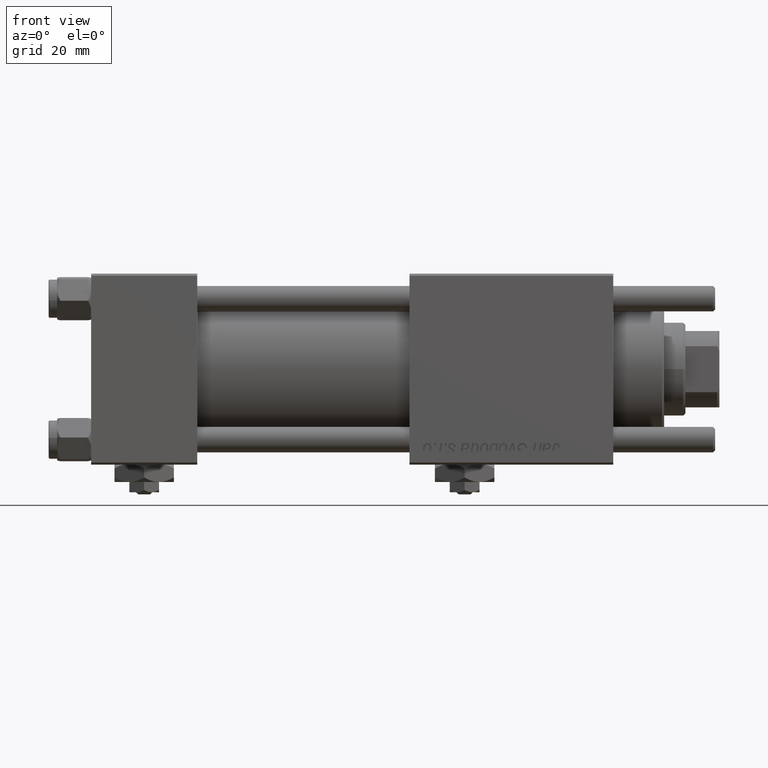
[diagram: clean part render]
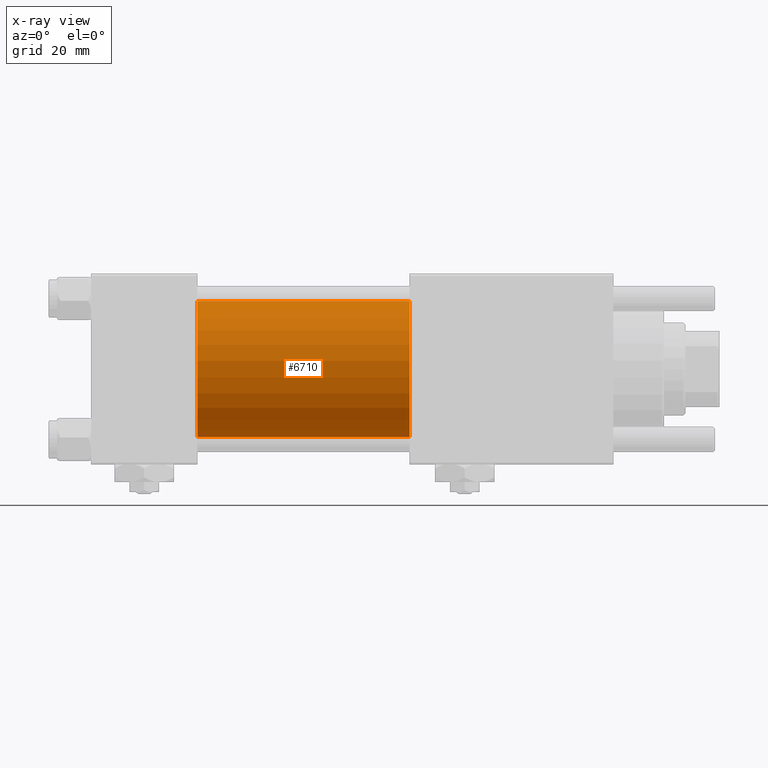
[diagram: x-ray — body ghosted, one internal face saturated and labeled with its STEP entity id]
A machine part, front view, then the same camera in x-ray: the body is ghosted and one INTERNAL B-rep face — a face not visible from any outside direction — is saturated and labeled: STEP entity #6710.
In plain terms, the highlighted cylindrical surface (partial cylindrical patch) has radius 16 mm, axis along (-1, -0, -0).
Its self-contained STEP definition (entity closure, byte-faithful):
#110 = DIRECTION ( 'NONE',  ( 0.000000000000000000, 0.000000000000000000, -1.000000000000000000 ) ) ;
#1291 = EDGE_LOOP ( 'NONE', ( #52038, #36259, #42176, #39013 ) ) ;
#4395 = AXIS2_PLACEMENT_3D ( 'NONE', #17651, #45020, #12311 ) ;
#4434 = VERTEX_POINT ( 'NONE', #52318 ) ;
#6710 = ADVANCED_FACE ( 'NONE', ( #7550 ), #13191, .F. ) ;
#7550 = FACE_OUTER_BOUND ( 'NONE', #1291, .T. ) ;
#7664 = VERTEX_POINT ( 'NONE', #13882 ) ;
#10597 = EDGE_CURVE ( 'NONE', #7664, #40149, #35879, .T. ) ;
#12311 = DIRECTION ( 'NONE',  ( 0.000000000000000000, 0.000000000000000000, 1.000000000000000000 ) ) ;
#13191 = CYLINDRICAL_SURFACE ( 'NONE', #4395, 16.00000000000000000 ) ;
#13882 = CARTESIAN_POINT ( 'NONE',  ( 75.00000000000001421, -2.602085213965210642E-15, 16.00000000000000000 ) ) ;
#14308 = LINE ( 'NONE', #18782, #26970 ) ;
#16331 = DIRECTION ( 'NONE',  ( 0.000000000000000000, 0.000000000000000000, -1.000000000000000000 ) ) ;
#16804 = DIRECTION ( 'NONE',  ( -1.000000000000000000, -0.000000000000000000, -0.000000000000000000 ) ) ;
#17651 = CARTESIAN_POINT ( 'NONE',  ( 75.00000000000001421, -2.602085213965210642E-15, 0.000000000000000000 ) ) ;
#18782 = CARTESIAN_POINT ( 'NONE',  ( 75.00000000000001421, -6.426503353294456087E-16, -16.00000000000000000 ) ) ;
#20596 = AXIS2_PLACEMENT_3D ( 'NONE', #58728, #55169, #110 ) ;
#25455 = LINE ( 'NONE', #34365, #49071 ) ;
#26970 = VECTOR ( 'NONE', #50013, 1000.000000000000000 ) ;
#28343 = VERTEX_POINT ( 'NONE', #49213 ) ;
#34365 = CARTESIAN_POINT ( 'NONE',  ( 75.00000000000001421, -2.602085213965210642E-15, 16.00000000000000000 ) ) ;
#34751 = DIRECTION ( 'NONE',  ( 1.000000000000000000, 0.000000000000000000, 0.000000000000000000 ) ) ;
#35879 = CIRCLE ( 'NONE', #49208, 16.00000000000000000 ) ;
#36259 = ORIENTED_EDGE ( 'NONE', *, *, #36941, .T. ) ;
#36941 = EDGE_CURVE ( 'NONE', #40149, #4434, #14308, .T. ) ;
#39013 = ORIENTED_EDGE ( 'NONE', *, *, #51037, .F. ) ;
#40149 = VERTEX_POINT ( 'NONE', #46126 ) ;
#42176 = ORIENTED_EDGE ( 'NONE', *, *, #51849, .F. ) ;
#45020 = DIRECTION ( 'NONE',  ( -1.000000000000000000, -0.000000000000000000, -0.000000000000000000 ) ) ;
#45249 = CIRCLE ( 'NONE', #20596, 16.00000000000000000 ) ;
#46126 = CARTESIAN_POINT ( 'NONE',  ( 75.00000000000001421, -6.426503353294456087E-16, -16.00000000000000000 ) ) ;
#49071 = VECTOR ( 'NONE', #16804, 1000.000000000000000 ) ;
#49208 = AXIS2_PLACEMENT_3D ( 'NONE', #57078, #34751, #16331 ) ;
#49213 = CARTESIAN_POINT ( 'NONE',  ( 25.00000000000000000, -2.602085213965210642E-15, 16.00000000000000000 ) ) ;
#50013 = DIRECTION ( 'NONE',  ( -1.000000000000000000, -0.000000000000000000, -0.000000000000000000 ) ) ;
#51037 = EDGE_CURVE ( 'NONE', #7664, #28343, #25455, .T. ) ;
#51849 = EDGE_CURVE ( 'NONE', #28343, #4434, #45249, .T. ) ;
#52038 = ORIENTED_EDGE ( 'NONE', *, *, #10597, .T. ) ;
#52318 = CARTESIAN_POINT ( 'NONE',  ( 25.00000000000000000, -6.426503353294456087E-16, -16.00000000000000000 ) ) ;
#55169 = DIRECTION ( 'NONE',  ( 1.000000000000000000, 0.000000000000000000, 0.000000000000000000 ) ) ;
#57078 = CARTESIAN_POINT ( 'NONE',  ( 75.00000000000001421, -2.602085213965210642E-15, 0.000000000000000000 ) ) ;
#58728 = CARTESIAN_POINT ( 'NONE',  ( 25.00000000000000000, -2.602085213965210642E-15, 0.000000000000000000 ) ) ;